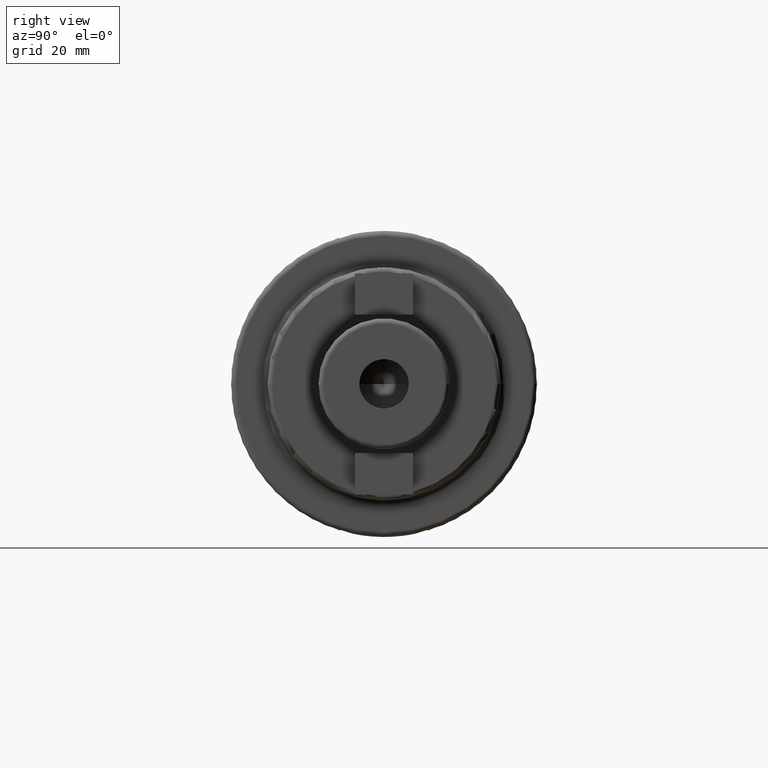
[diagram: clean part render]
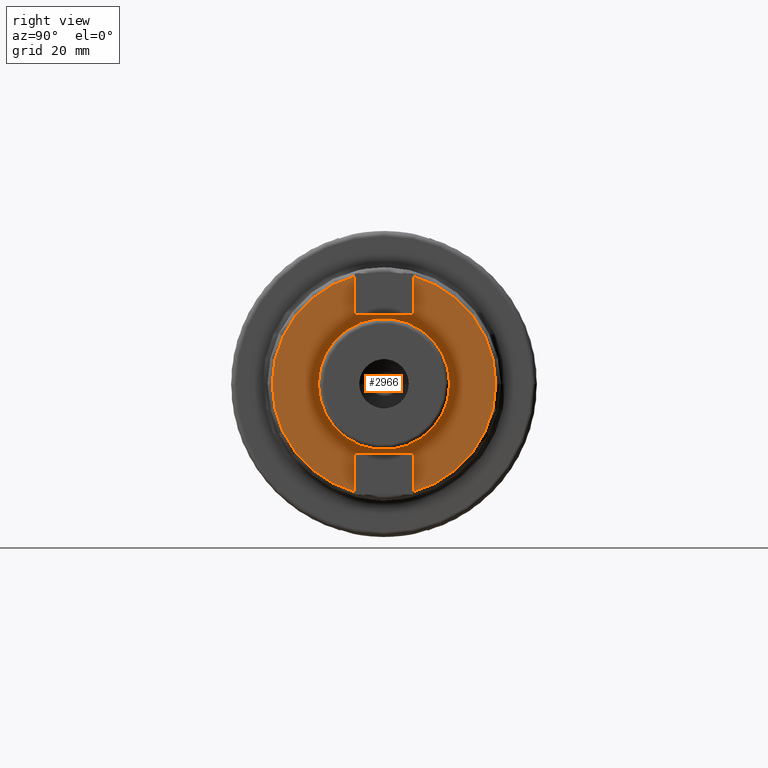
[diagram: same view with one face highlighted and labeled with its STEP entity id]
A machine part, right view. The second image highlights one B-rep face of the part: STEP entity #2966.
In plain terms, the highlighted planar face has unit normal (1, 0, 0).
Its self-contained STEP definition (entity closure, byte-faithful):
#946=CARTESIAN_POINT('',(3.5E1,0.E0,0.E0));
#947=DIRECTION('',(1.E0,0.E0,0.E0));
#948=DIRECTION('',(0.E0,1.E0,0.E0));
#949=AXIS2_PLACEMENT_3D('',#946,#947,#948);
#951=CARTESIAN_POINT('',(3.5E1,0.E0,0.E0));
#952=DIRECTION('',(-1.E0,0.E0,0.E0));
#953=DIRECTION('',(0.E0,1.E0,0.E0));
#954=AXIS2_PLACEMENT_3D('',#951,#952,#953);
#956=DIRECTION('',(0.E0,-1.E0,0.E0));
#957=VECTOR('',#956,1.2E1);
#958=CARTESIAN_POINT('',(3.5E1,6.E0,-1.425E1));
#959=LINE('',#958,#957);
#960=DIRECTION('',(0.E0,0.E0,-1.E0));
#961=VECTOR('',#960,7.953603311175E0);
#962=CARTESIAN_POINT('',(3.5E1,-6.E0,-1.425E1));
#963=LINE('',#962,#961);
#964=CARTESIAN_POINT('',(3.5E1,0.E0,0.E0));
#965=DIRECTION('',(-1.E0,0.E0,0.E0));
#966=DIRECTION('',(0.E0,-2.608695652174E-1,-9.653740570076E-1));
#967=AXIS2_PLACEMENT_3D('',#964,#965,#966);
#969=CARTESIAN_POINT('',(3.5E1,0.E0,0.E0));
#970=DIRECTION('',(-1.E0,0.E0,0.E0));
#971=DIRECTION('',(0.E0,-1.E0,0.E0));
#972=AXIS2_PLACEMENT_3D('',#969,#970,#971);
#974=DIRECTION('',(0.E0,0.E0,-1.E0));
#975=VECTOR('',#974,7.953603311175E0);
#976=CARTESIAN_POINT('',(3.5E1,-6.E0,2.220360331117E1));
#977=LINE('',#976,#975);
#978=DIRECTION('',(0.E0,1.E0,0.E0));
#979=VECTOR('',#978,1.2E1);
#980=CARTESIAN_POINT('',(3.5E1,-6.E0,1.425E1));
#981=LINE('',#980,#979);
#982=DIRECTION('',(0.E0,0.E0,1.E0));
#983=VECTOR('',#982,7.953603311175E0);
#984=CARTESIAN_POINT('',(3.5E1,6.E0,1.425E1));
#985=LINE('',#984,#983);
#986=CARTESIAN_POINT('',(3.5E1,0.E0,0.E0));
#987=DIRECTION('',(-1.E0,0.E0,0.E0));
#988=DIRECTION('',(0.E0,2.608695652174E-1,9.653740570076E-1));
#989=AXIS2_PLACEMENT_3D('',#986,#987,#988);
#991=CARTESIAN_POINT('',(3.5E1,0.E0,0.E0));
#992=DIRECTION('',(-1.E0,0.E0,0.E0));
#993=DIRECTION('',(0.E0,1.E0,0.E0));
#994=AXIS2_PLACEMENT_3D('',#991,#992,#993);
#996=DIRECTION('',(0.E0,0.E0,1.E0));
#997=VECTOR('',#996,7.953603311175E0);
#998=CARTESIAN_POINT('',(3.5E1,6.E0,-2.220360331117E1));
#999=LINE('',#998,#997);
#1611=CARTESIAN_POINT('',(3.5E1,1.35E1,0.E0));
#1612=CARTESIAN_POINT('',(3.5E1,-1.35E1,0.E0));
#1613=VERTEX_POINT('',#1611);
#1614=VERTEX_POINT('',#1612);
#1623=CARTESIAN_POINT('',(3.5E1,-2.3E1,-9.641759612933E-12));
#1624=VERTEX_POINT('',#1623);
#1625=CARTESIAN_POINT('',(3.5E1,2.3E1,9.624467889324E-12));
#1626=VERTEX_POINT('',#1625);
#1651=CARTESIAN_POINT('',(3.5E1,6.E0,-1.425E1));
#1652=CARTESIAN_POINT('',(3.5E1,-6.E0,-1.425E1));
#1653=VERTEX_POINT('',#1651);
#1654=VERTEX_POINT('',#1652);
#1655=CARTESIAN_POINT('',(3.5E1,-6.E0,-2.220360331117E1));
#1656=VERTEX_POINT('',#1655);
#1661=CARTESIAN_POINT('',(3.5E1,6.E0,-2.220360331117E1));
#1662=VERTEX_POINT('',#1661);
#1663=CARTESIAN_POINT('',(3.5E1,6.E0,1.425E1));
#1664=CARTESIAN_POINT('',(3.5E1,6.E0,2.220360331117E1));
#1665=VERTEX_POINT('',#1663);
#1666=VERTEX_POINT('',#1664);
#1671=CARTESIAN_POINT('',(3.5E1,-6.E0,2.220360331117E1));
#1672=CARTESIAN_POINT('',(3.5E1,-6.E0,1.425E1));
#1673=VERTEX_POINT('',#1671);
#1674=VERTEX_POINT('',#1672);
#2937=CARTESIAN_POINT('',(3.5E1,0.E0,0.E0));
#2938=DIRECTION('',(1.E0,0.E0,0.E0));
#2939=DIRECTION('',(0.E0,-1.E0,0.E0));
#2940=AXIS2_PLACEMENT_3D('',#2937,#2938,#2939);
#2941=PLANE('',#2940);
#2943=ORIENTED_EDGE('',*,*,#2942,.T.);
#2945=ORIENTED_EDGE('',*,*,#2944,.T.);
#2946=ORIENTED_EDGE('',*,*,#2859,.T.);
#2947=ORIENTED_EDGE('',*,*,#2927,.T.);
#2949=ORIENTED_EDGE('',*,*,#2948,.T.);
#2951=ORIENTED_EDGE('',*,*,#2950,.T.);
#2953=ORIENTED_EDGE('',*,*,#2952,.T.);
#2954=ORIENTED_EDGE('',*,*,#2932,.T.);
#2955=ORIENTED_EDGE('',*,*,#2852,.T.);
#2957=ORIENTED_EDGE('',*,*,#2956,.T.);
#2958=EDGE_LOOP('',(#2943,#2945,#2946,#2947,#2949,#2951,#2953,#2954,#2955,
#2957));
#2959=FACE_OUTER_BOUND('',#2958,.F.);
#2961=ORIENTED_EDGE('',*,*,#2960,.T.);
#2963=ORIENTED_EDGE('',*,*,#2962,.F.);
#2964=EDGE_LOOP('',(#2961,#2963));
#2965=FACE_BOUND('',#2964,.F.);
#2966=ADVANCED_FACE('',(#2959,#2965),#2941,.T.);
#950=CIRCLE('',#949,1.35E1);
#955=CIRCLE('',#954,1.35E1);
#968=CIRCLE('',#967,2.3E1);
#973=CIRCLE('',#972,2.3E1);
#990=CIRCLE('',#989,2.3E1);
#995=CIRCLE('',#994,2.3E1);
#2852=EDGE_CURVE('',#1626,#1662,#995,.T.);
#2859=EDGE_CURVE('',#1656,#1624,#968,.T.);
#2927=EDGE_CURVE('',#1624,#1673,#973,.T.);
#2932=EDGE_CURVE('',#1666,#1626,#990,.T.);
#2942=EDGE_CURVE('',#1653,#1654,#959,.T.);
#2944=EDGE_CURVE('',#1654,#1656,#963,.T.);
#2948=EDGE_CURVE('',#1673,#1674,#977,.T.);
#2950=EDGE_CURVE('',#1674,#1665,#981,.T.);
#2952=EDGE_CURVE('',#1665,#1666,#985,.T.);
#2956=EDGE_CURVE('',#1662,#1653,#999,.T.);
#2960=EDGE_CURVE('',#1613,#1614,#950,.T.);
#2962=EDGE_CURVE('',#1613,#1614,#955,.T.);